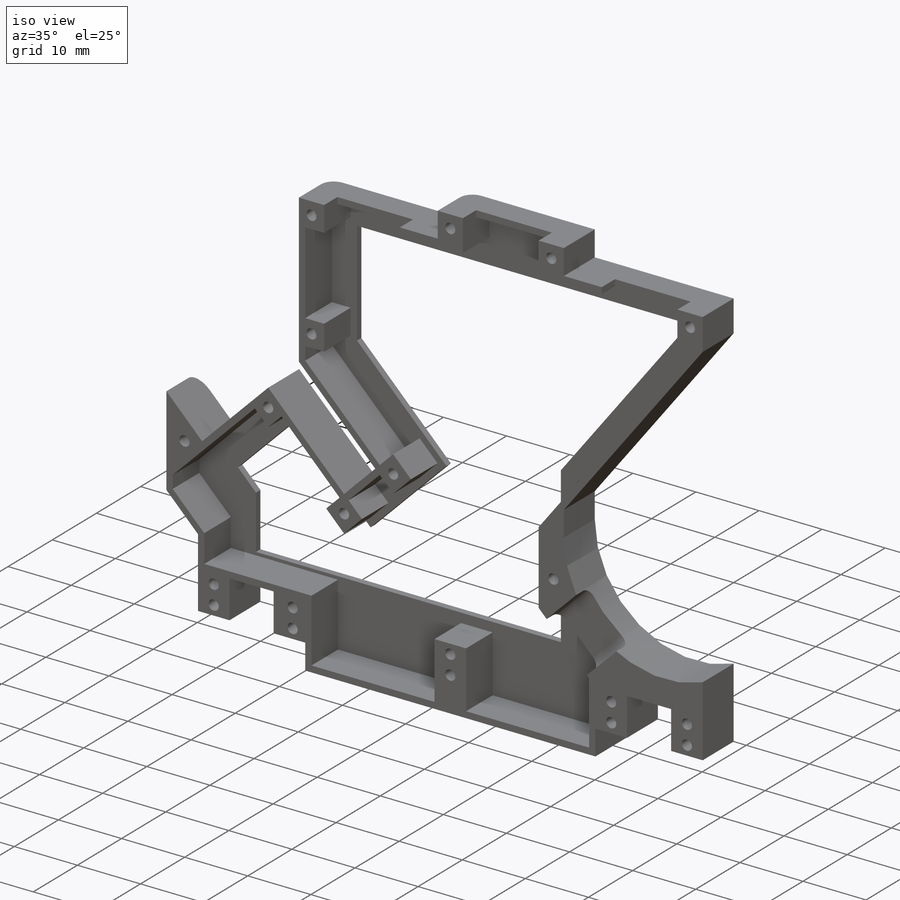
[diagram: iso view]
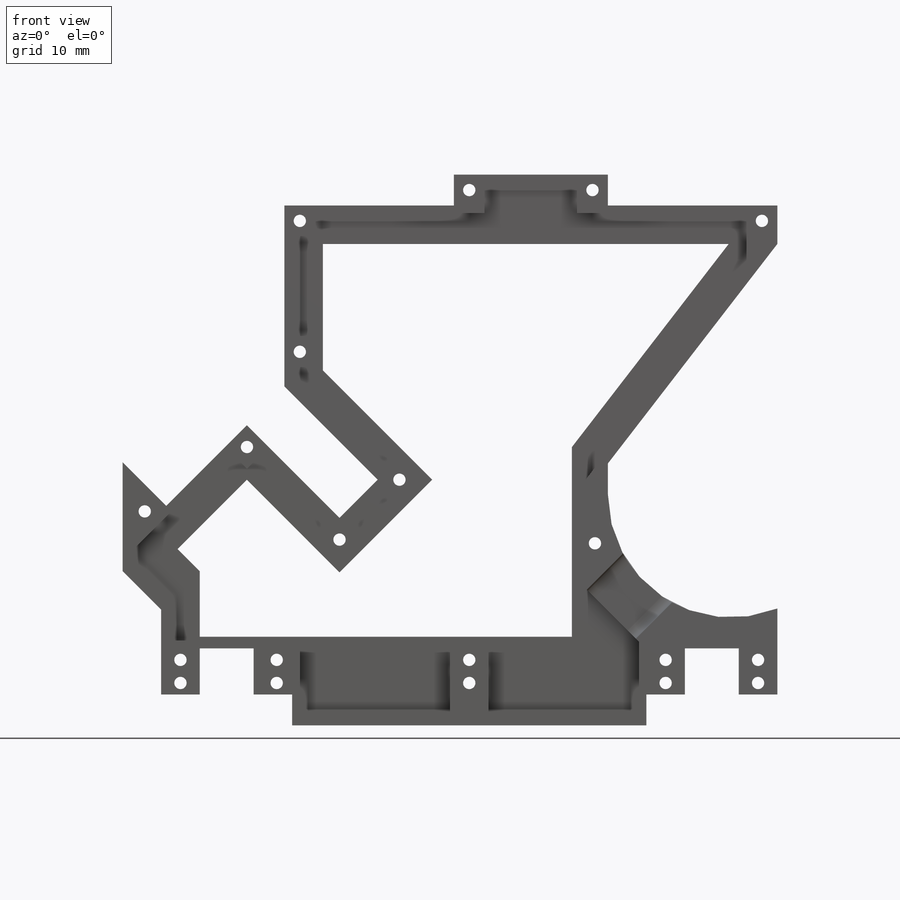
[diagram: front view]
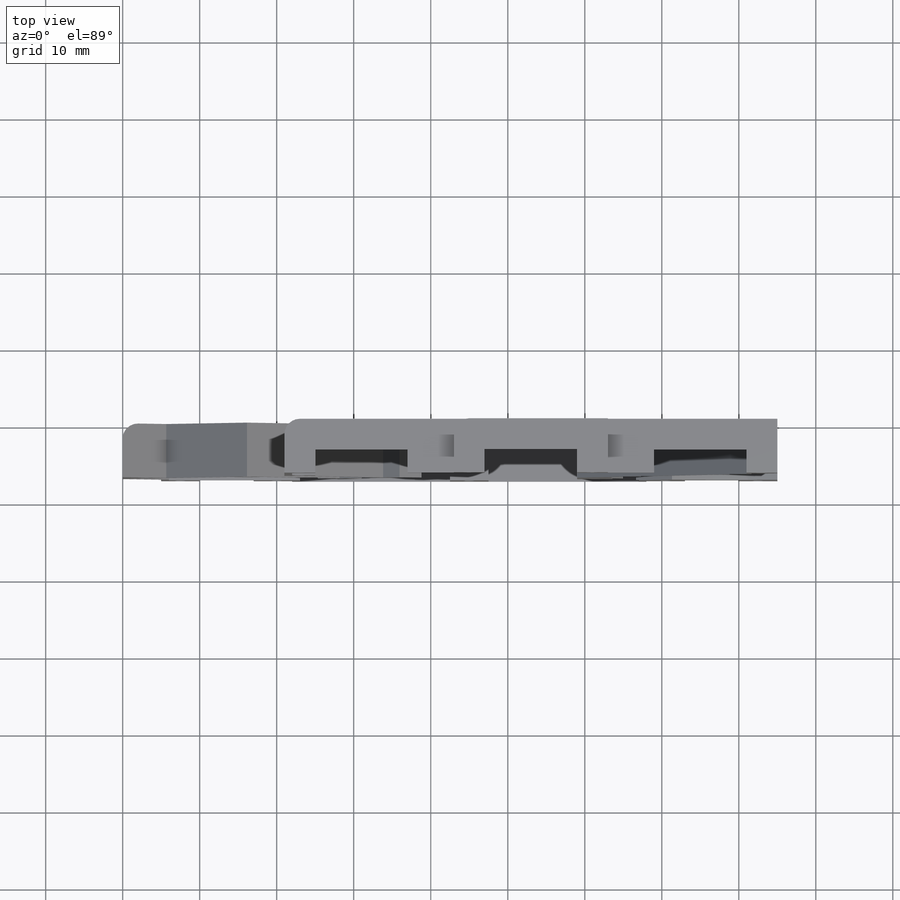
[diagram: top view]
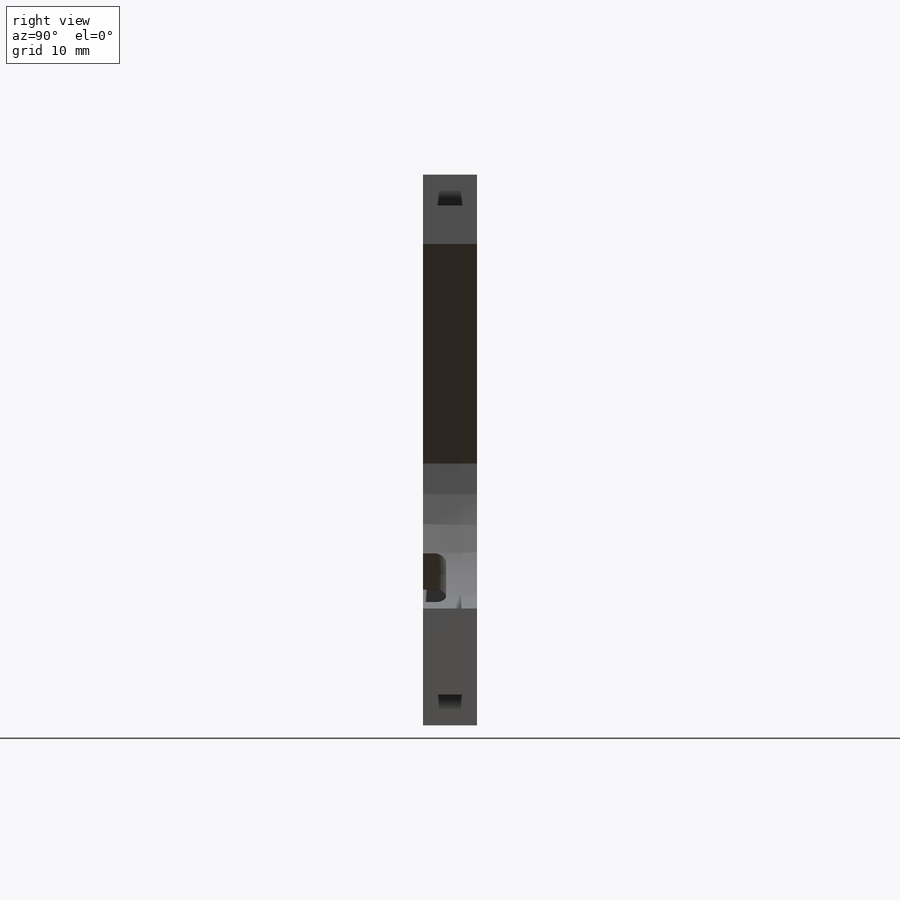
[diagram: right view]
SOLIDWORKS PART (.sldprt)
format: sldprt  version: not decoded by parser v0  size: 692,736 bytes
history: native  units: mm
features: sketch x6, cut_extrude x4, extrude x2, material x1, fillet x1 (+13 scaffold rows collapsed)
feature tree (27):
  scaffold x13  (default folders/planes/origin — collapsed)
  material  "Material <not specified>"
  sketch  "Sketch1"  dims[c1.D1=4.0mm c1.D2=4.0mm c1.D3=4.0mm c1.D4=4.0mm c1.D5=4.0mm c2.D1=2.0mm c2.D2=2.0mm c2.D3=2.0mm c2.D4=2.0mm c2.D5=2.0mm c2.D6=2.0mm c3.D1=2.0mm c3.D2=2.0mm c3.D3=1.0mm c4.D1=~3.475465mm c5.D1=0.0deg c6.D1=~56.715705mm c6.D2=4.0mm c6.D3=~35.887278mm c7.D1=46.0mm c7.D2=22.0mm c8.D1=~5.167603mm]
  extrude  "Boss-Extrude1"  Depth=1mm
  sketch  "Sketch4"  dims[D1=~11.567402mm]
  extrude  "Boss-Extrude3"  Depth=7mm
  fillet  "Fillet1"  Radius=2mm
  sketch  "Sketch5"  dims[D1=~21.234948mm]
  cut_extrude  "Screw Holes"  [1 undecoded]
  sketch  "Sketch6"  dims[D1=~8.713524mm]
  cut_extrude  "Tube Openings - Finger"  Depth=3mm
  sketch  "Sketch9"  dims[D1=~2.937637mm]
  cut_extrude  "Tube Openings - Thumb"  Depth=7mm
  sketch  "Sketch10"  dims[D1=~48.32233mm]
  cut_extrude  "Cut-Extrude1"  [1 undecoded]
decode coverage: 11 of 13 modeling features carry decoded parameters
note: ~ marks probable driven/reference dimensions
note: 2 parameter values undecoded
note: suppression state not decoded; provenance and decode notes live in map.json
